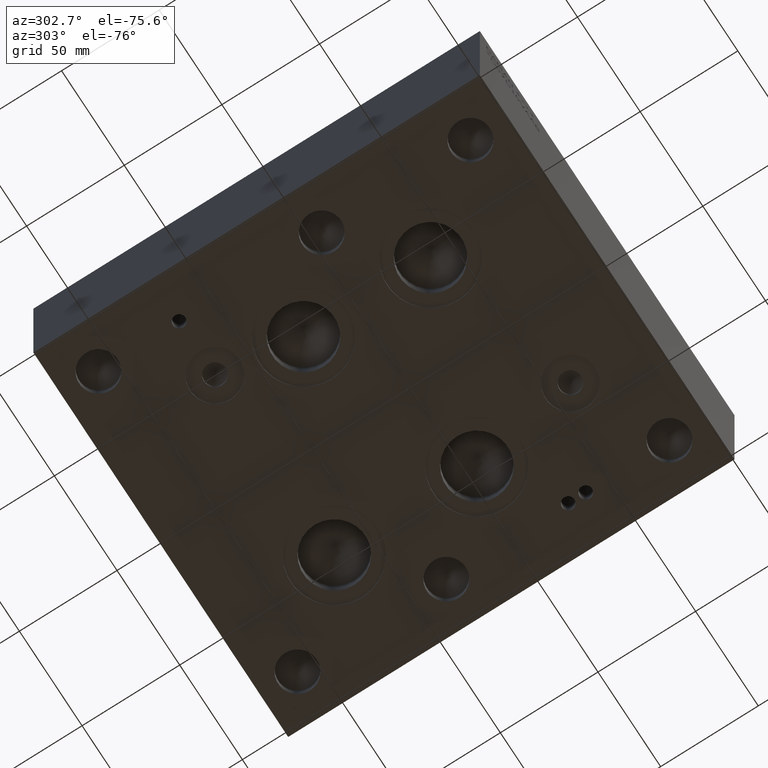
[diagram: clean part render]
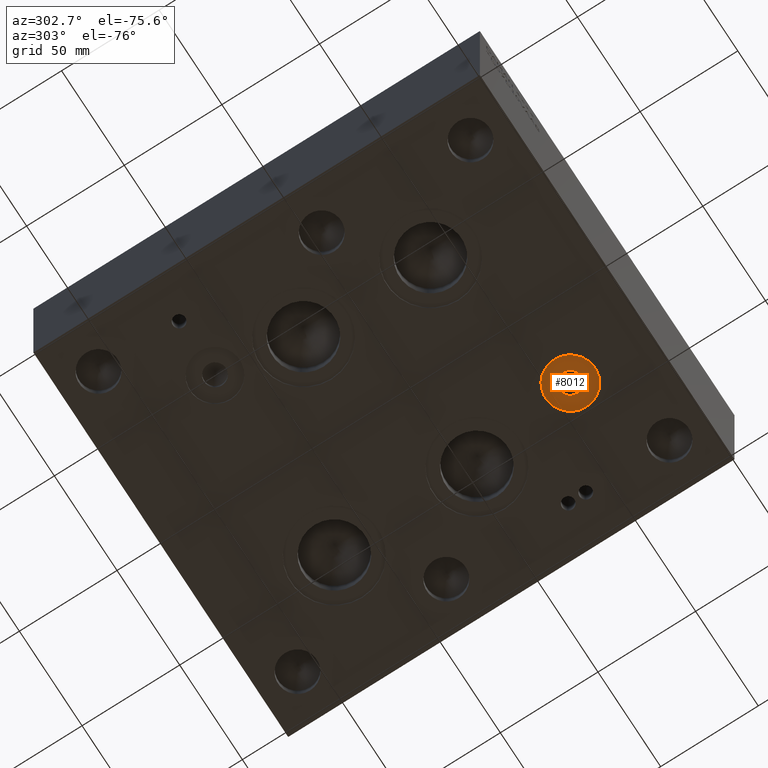
[diagram: same view with one face highlighted and labeled with its STEP entity id]
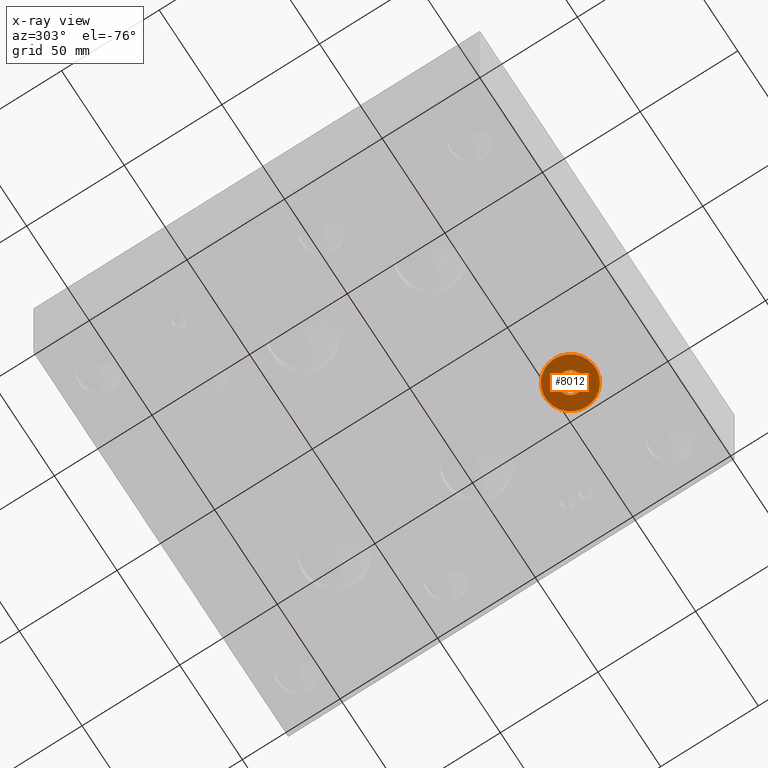
[diagram: x-ray of the same camera — body ghosted, the highlighted face saturated]
A machine part, auxiliary view. The second image highlights one B-rep face of the part: STEP entity #8012.
The next image is the same camera in x-ray: the body ghosted, the highlighted face saturated — about 0% of this face is hidden behind the body in this view.
In plain terms, the highlighted planar face has unit normal (0, 0, -1).
Its self-contained STEP definition (entity closure, byte-faithful):
#72=CIRCLE('',#8378,5.5626);
#79=CIRCLE('',#8388,12.7);
#80=CIRCLE('',#8389,12.7);
#327=FACE_BOUND('',#1321,.T.);
#876=FACE_OUTER_BOUND('',#1320,.T.);
#1320=EDGE_LOOP('',(#6597,#6598));
#1321=EDGE_LOOP('',(#6599));
#3604=VERTEX_POINT('',#13055);
#3611=VERTEX_POINT('',#13074);
#3612=VERTEX_POINT('',#13076);
#4655=EDGE_CURVE('',#3604,#3604,#72,.T.);
#4665=EDGE_CURVE('',#3612,#3611,#79,.T.);
#4666=EDGE_CURVE('',#3611,#3612,#80,.T.);
#6597=ORIENTED_EDGE('',*,*,#4665,.T.);
#6598=ORIENTED_EDGE('',*,*,#4666,.T.);
#6599=ORIENTED_EDGE('',*,*,#4655,.T.);
#7390=PLANE('',#8390);
#8012=ADVANCED_FACE('',(#876,#327),#7390,.T.);
#8378=AXIS2_PLACEMENT_3D('',#13056,#9865,#9866);
#8388=AXIS2_PLACEMENT_3D('',#13077,#9888,#9889);
#8389=AXIS2_PLACEMENT_3D('',#13078,#9890,#9891);
#8390=AXIS2_PLACEMENT_3D('',#13079,#9892,#9893);
#9865=DIRECTION('center_axis',(0.,0.,1.));
#9866=DIRECTION('ref_axis',(1.,0.,0.));
#9888=DIRECTION('center_axis',(0.,0.,-1.));
#9889=DIRECTION('ref_axis',(1.,0.,0.));
#9890=DIRECTION('center_axis',(0.,0.,-1.));
#9891=DIRECTION('ref_axis',(1.,0.,0.));
#9892=DIRECTION('center_axis',(0.,0.,-1.));
#9893=DIRECTION('ref_axis',(1.,0.,0.));
#13055=CARTESIAN_POINT('',(130.9624,41.275,1.016));
#13056=CARTESIAN_POINT('Origin',(136.525,41.275,1.016));
#13074=CARTESIAN_POINT('',(123.825,41.275,1.016));
#13076=CARTESIAN_POINT('',(149.225,41.275,1.016));
#13077=CARTESIAN_POINT('Origin',(136.525,41.275,1.016));
#13078=CARTESIAN_POINT('Origin',(136.525,41.275,1.016));
#13079=CARTESIAN_POINT('Origin',(136.525,41.275,1.016));